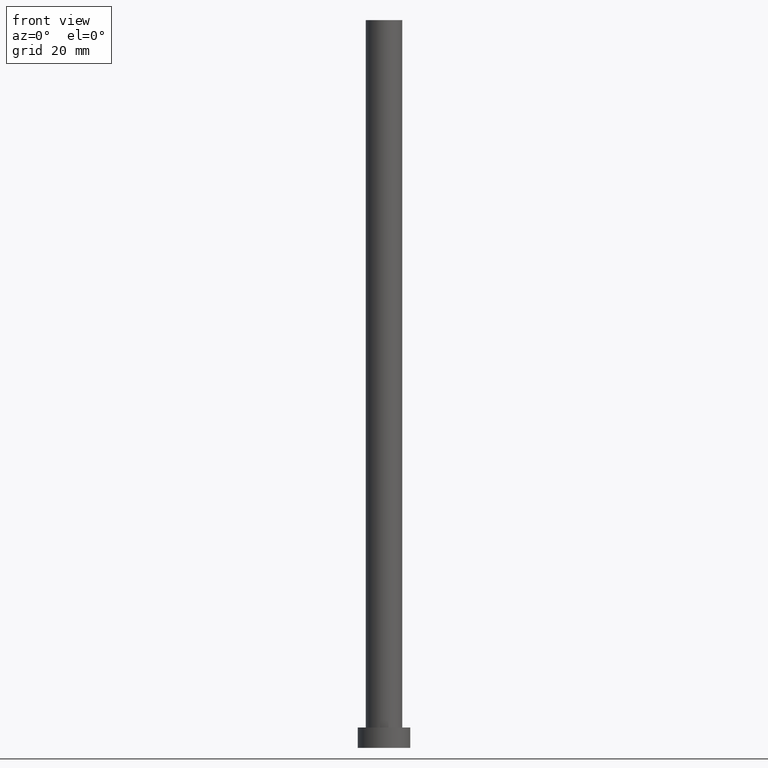
[diagram: clean part render]
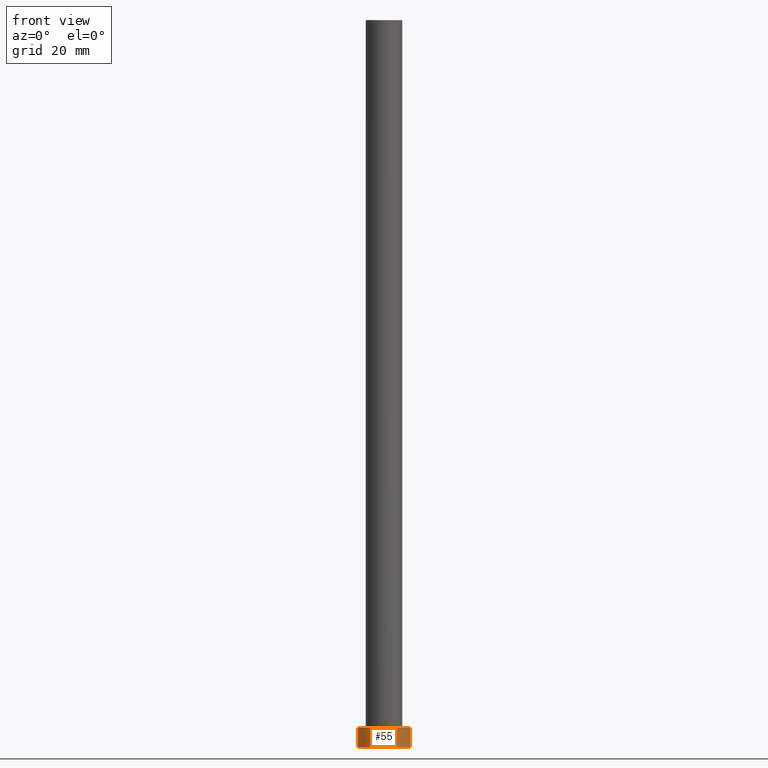
[diagram: same view with one face highlighted and labeled with its STEP entity id]
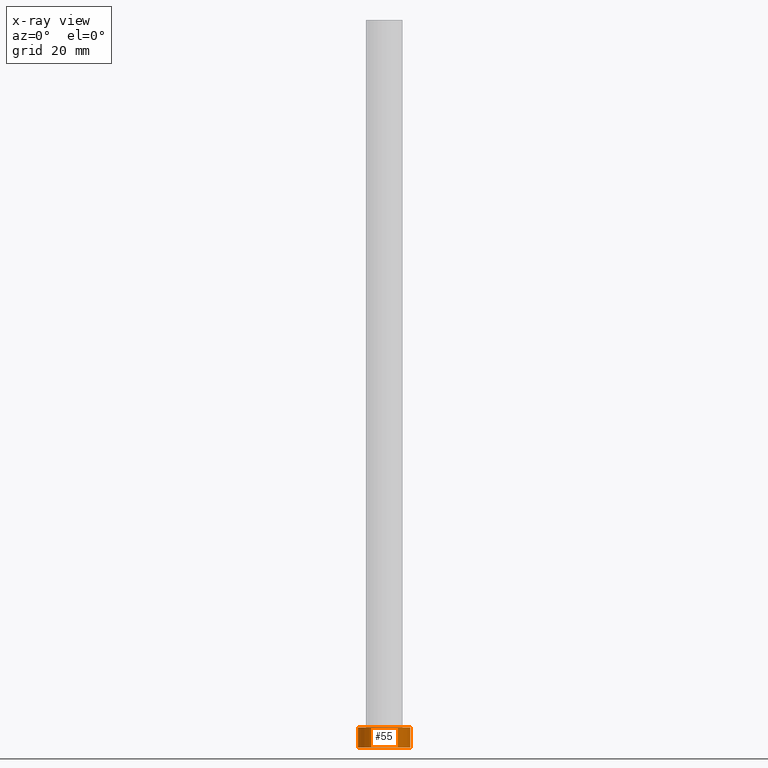
[diagram: x-ray of the same camera — body ghosted, the highlighted face saturated]
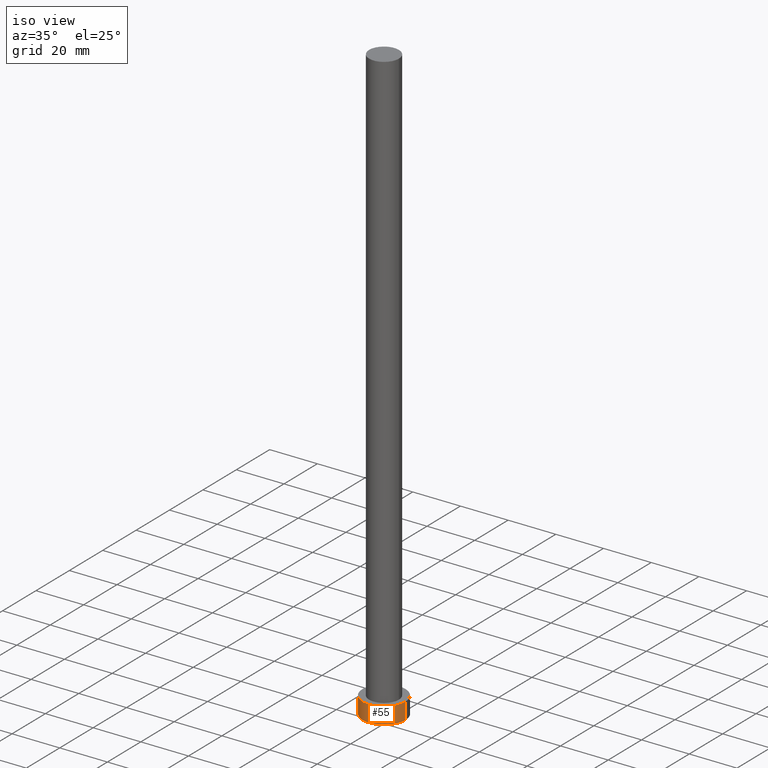
[diagram: same view with one face highlighted and labeled with its STEP entity id]
A machine part, front view. The second image highlights one B-rep face of the part: STEP entity #55.
The next image is the same camera in x-ray: the body ghosted, the highlighted face saturated — about 0% of this face is hidden behind the body in this view.
A second angle (iso view) of the same face is appended — the face is thin or edge-on in the first view.
In plain terms, the highlighted cylindrical surface (edge-blend (fillet) strip) has radius 9 mm, axis along (-0, -0, -1).
Its self-contained STEP definition (entity closure, byte-faithful):
#5 = EDGE_LOOP ( 'NONE', ( #194, #68, #101, #219 ) ) ;
#14 = CARTESIAN_POINT ( 'NONE',  ( 9.000000000000000000, 1.102182119232617714E-15, 7.000000000000000000 ) ) ;
#27 = DIRECTION ( 'NONE',  ( -1.000000000000000000, 0.000000000000000000, 0.000000000000000000 ) ) ;
#31 = CIRCLE ( 'NONE', #37, 9.000000000000000000 ) ;
#36 = DIRECTION ( 'NONE',  ( 1.000000000000000000, 0.000000000000000000, 0.000000000000000000 ) ) ;
#37 = AXIS2_PLACEMENT_3D ( 'NONE', #118, #133, #36 ) ;
#46 = DIRECTION ( 'NONE',  ( -0.000000000000000000, -0.000000000000000000, -1.000000000000000000 ) ) ;
#51 = DIRECTION ( 'NONE',  ( 0.000000000000000000, 0.000000000000000000, 1.000000000000000000 ) ) ;
#55 = ADVANCED_FACE ( 'NONE', ( #201 ), #225, .T. ) ;
#56 = DIRECTION ( 'NONE',  ( 1.000000000000000000, 0.000000000000000000, 0.000000000000000000 ) ) ;
#68 = ORIENTED_EDGE ( 'NONE', *, *, #195, .F. ) ;
#70 = VERTEX_POINT ( 'NONE', #187 ) ;
#73 = CIRCLE ( 'NONE', #197, 9.000000000000000000 ) ;
#74 = CARTESIAN_POINT ( 'NONE',  ( 0.000000000000000000, 0.000000000000000000, 7.000000000000000000 ) ) ;
#75 = CARTESIAN_POINT ( 'NONE',  ( 0.000000000000000000, 0.000000000000000000, 0.000000000000000000 ) ) ;
#88 = CARTESIAN_POINT ( 'NONE',  ( 9.000000000000000000, 1.102182119232617714E-15, 7.000000000000000000 ) ) ;
#92 = DIRECTION ( 'NONE',  ( -0.000000000000000000, -0.000000000000000000, -1.000000000000000000 ) ) ;
#101 = ORIENTED_EDGE ( 'NONE', *, *, #130, .T. ) ;
#105 = EDGE_CURVE ( 'NONE', #123, #139, #111, .T. ) ;
#111 = LINE ( 'NONE', #14, #158 ) ;
#118 = CARTESIAN_POINT ( 'NONE',  ( 0.000000000000000000, 0.000000000000000000, 7.000000000000000000 ) ) ;
#123 = VERTEX_POINT ( 'NONE', #88 ) ;
#130 = EDGE_CURVE ( 'NONE', #70, #204, #161, .T. ) ;
#133 = DIRECTION ( 'NONE',  ( 0.000000000000000000, 0.000000000000000000, 1.000000000000000000 ) ) ;
#139 = VERTEX_POINT ( 'NONE', #169 ) ;
#144 = DIRECTION ( 'NONE',  ( -0.000000000000000000, -0.000000000000000000, -1.000000000000000000 ) ) ;
#154 = CARTESIAN_POINT ( 'NONE',  ( -9.000000000000000000, 0.000000000000000000, 0.000000000000000000 ) ) ;
#158 = VECTOR ( 'NONE', #92, 1000.000000000000000 ) ;
#161 = LINE ( 'NONE', #241, #186 ) ;
#166 = AXIS2_PLACEMENT_3D ( 'NONE', #74, #144, #27 ) ;
#169 = CARTESIAN_POINT ( 'NONE',  ( 9.000000000000000000, 1.102182119232617714E-15, 0.000000000000000000 ) ) ;
#172 = EDGE_CURVE ( 'NONE', #204, #139, #73, .T. ) ;
#186 = VECTOR ( 'NONE', #46, 1000.000000000000000 ) ;
#187 = CARTESIAN_POINT ( 'NONE',  ( -9.000000000000000000, 0.000000000000000000, 7.000000000000000000 ) ) ;
#194 = ORIENTED_EDGE ( 'NONE', *, *, #105, .F. ) ;
#195 = EDGE_CURVE ( 'NONE', #70, #123, #31, .T. ) ;
#197 = AXIS2_PLACEMENT_3D ( 'NONE', #75, #51, #56 ) ;
#201 = FACE_OUTER_BOUND ( 'NONE', #5, .T. ) ;
#204 = VERTEX_POINT ( 'NONE', #154 ) ;
#219 = ORIENTED_EDGE ( 'NONE', *, *, #172, .T. ) ;
#225 = CYLINDRICAL_SURFACE ( 'NONE', #166, 9.000000000000000000 ) ;
#241 = CARTESIAN_POINT ( 'NONE',  ( -9.000000000000000000, 0.000000000000000000, 7.000000000000000000 ) ) ;